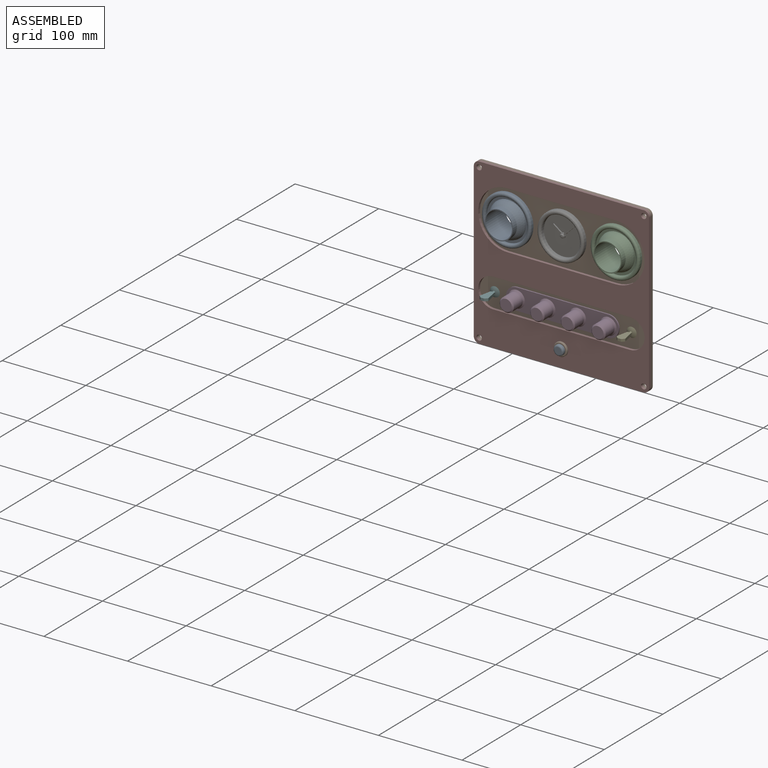
[diagram: assembled view]
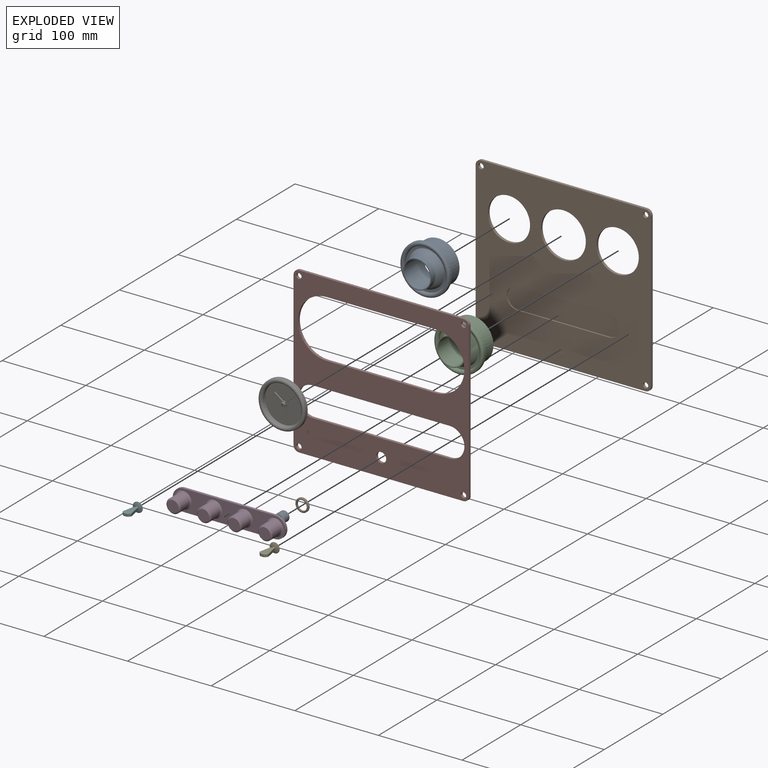
[diagram: exploded view]
GUIDED TOUR — MATED ASSEMBLY WITH SUBASSEMBLIES (Onshape document 7c3ce6815d3dd1184ce7540e, AutoMate assembly 7c3ce6815d3dd1184ce7540e_483a6e22841817b8dac2f705_e077e26f0af11b9b3541a5b8_default)

This assembly has 16 component occurrences arranged in 10 top-level units: 7 individual components plus 3 subassemblies (S0, S1, S2). The tour has two levels: first the top level, where each subassembly is treated as one rigid unit; then each subassembly is toured internally in its own section (nesting deeper than one subassembly level is flattened into its subassembly's section).

Components are labeled P0..P15 across the whole record; subassembly units are labeled S0..S2. A mate is a constraint between two units; its type names the relative motion it leaves free:
  BALL — leaves all rotation about the listed point free (a ball joint),
  FASTENED — locks the two components together rigidly (no relative motion).
Axis/direction vectors are unit vectors and 'through' points are millimeter coordinates, both in the assembly's world frame.

TOP-LEVEL MATES (between units; each subassembly's internal mates are listed in its own section)
  1. FASTENED "Fastened 1": P4 <-> P12, direction (0.000, 1.000, 0.000) through (-36.14, -2.82, -33.76) mm
  2. FASTENED "Fastened 6": S1 <-> P12, direction (0.000, 1.000, 0.000) through (28.86, -4.32, 49.34) mm
  3. FASTENED "Fastened 9": P10 <-> P12, direction (0.000, 1.000, 0.000) through (-134.57, -4.32, 97.52) mm
  4. FASTENED "Fastened 8": S2 <-> P12, direction (0.000, 1.000, 0.000) through (-36.14, -4.32, 49.34) mm
  5. FASTENED "Fastened 5": P8 <-> P12, direction (0.000, 1.000, 0.000) through (-117.94, -4.22, -33.76) mm
  6. FASTENED "Fastened 7": S0 <-> P12, direction (0.000, 1.000, 0.000) through (-101.14, -4.32, 49.34) mm
  7. FASTENED "Fastened 2": P1 <-> P10, direction (0.000, 1.000, 0.000) through (-36.14, -7.49, -72.26) mm
  8. FASTENED "Fastened 4": P7 <-> P12, direction (0.000, 1.000, 0.000) through (45.66, -4.22, -33.76) mm
  9. FASTENED "Fastened 3": P11 <-> P12, direction (0.000, 1.000, 0.000) through (-36.14, -4.22, -72.26) mm

TOP-LEVEL ASSEMBLY ORDER
  1. P12 — the base component [order heuristic]
  2. S0 — core [order heuristic]
  3. S1 — core [order heuristic]
  4. P10 [order verified]
  5. P4 [order verified]
  6. P1 [order verified]
  7. P11 [order verified]
  8. P8 [order verified]
  9. P7 [order verified]
  10. S2 [order verified]
Order-tag legend:
  [order verified] — this step's position reverses a verified removal order: the component was checked to insert without passing through the ones already placed.
  [order heuristic] — the first 3 components form the assembly's core: parts whose collision-free extraction could not be verified, listed in mate-graph order.

Of the 16 component occurrences, 15 carry the full construction recipe — the FeatureScript program that regenerates the part's solid from scratch; the rest are supplied as boundary geometry only. Each toured unit is shown spotlighted twice — assembled, then exploded with a leader line back to its socket (green = recipe-attached component, orange = geometry-only, blue = subassembly unit; the rest desaturated gray).
NOTE — document 2 of 2 of this assembly tour. The two overview renders and the header above are repeated from document 1; the component sections below continue where the previous document stopped.
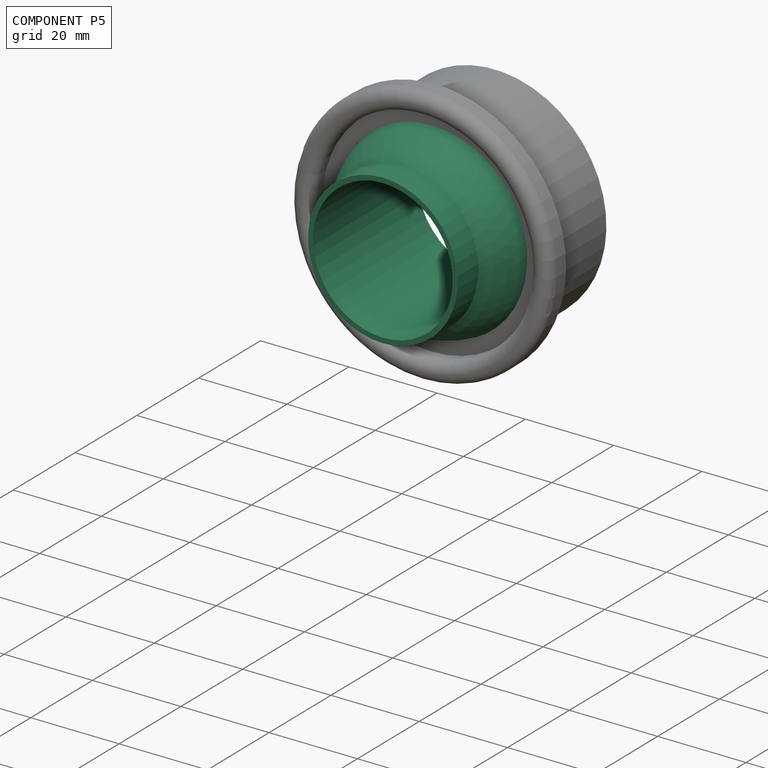
[diagram: component P5 — assembled]
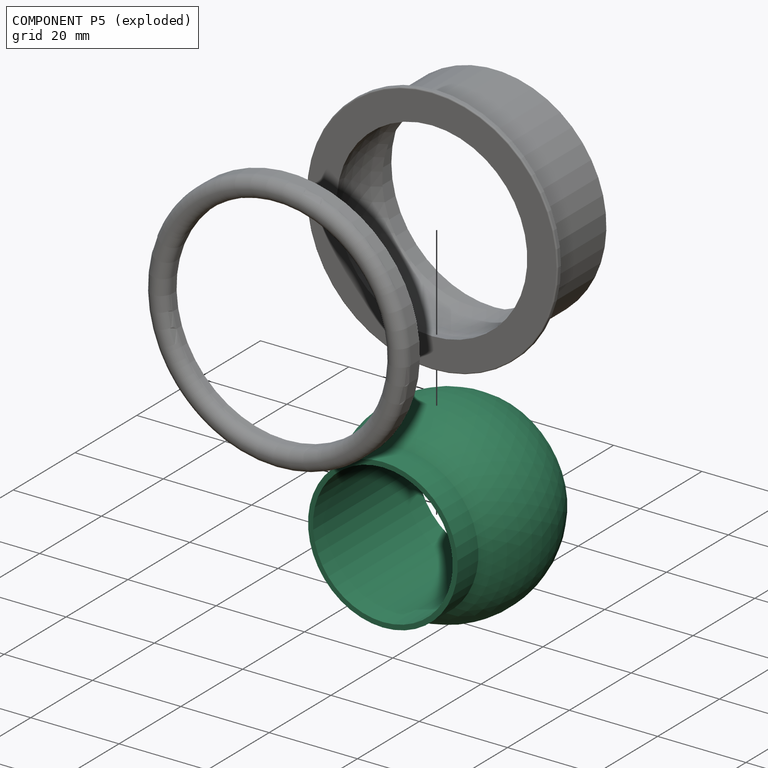
[diagram: component P5 — exploded]
COMPONENT P5 — recipe-attached (CADFS 00925167, mesh-verified: the recipe's output STEP matches this component's geometry to below the mesh-comparison resolution (tessellation chordal tolerance ~0.107 mm)).
Held by: BALL mate "Ball 1" to P0; BALL mate "Ball 1" to P0.
Construction recipe (FeatureScript — the CAD program that rebuilds this solid; sketch coordinates are in the units given by the * unit suffixes, e.g. mm):

FeatureScript 1540;
import(path : "onshape/std/geometry.fs", version : "1540.0");
import(path : "onshape/std/common.fs", version : "1540.0");
const mm = millimeter;
const VERTEX = EntityType.VERTEX;
const EDGE = EntityType.EDGE;
const FACE = EntityType.FACE;
const BODY = EntityType.BODY;
function v(x, y){return vector(x, y);}
function OD(order){return orderDisambiguation(order);}
function OSD(set){return originalSetDisambiguation(set);}
function TD(topology){return topologyDisambiguation(topology);}
function TDD(query){return trueDependencyDisambiguation(query);}
function sQuery(a, b, c) {return sketchEntityQuery(a, b, c);}

annotation { "Feature Type Name" : "Feature", "Feature Type Description" : "" }
export const myFeature = defineFeature(function(context is Context, id is Id, definition is map)
    precondition{}
    {
        {
            var Q0;
            Q0=qCreatedBy(makeId("Right.planeOp"),FACE);
            var sketch = newSketch(context, id + "F0", { "sketchPlane" : qUnion([Q0])});
            skLineSegment(sketch, "E0", {"start": v(-31.67, 0) * mm, "end": v(38.06, 0) * mm, "construction": true});
            skArc(sketch, "E1", {"start": v(22.18, 0) * mm, "mid": v(0, 22.18) * mm, "end": v(-22.18, 0) * mm});
            skLineSegment(sketch, "E2", {"start": v(-22.18, 0) * mm, "end": v(22.18, 0) * mm});
            skSolve(sketch);
        }
        {
            var Q0;
            Q0 = qSketchRegion(id + "F0", true);
            var Q1;
            Q1=sQuery(id+"F0.wireOp",EDGE,"E0");
            revolve(context, id + "F1", {"surfaceOperationType" : NewSurfaceOperationType.NEW, "entities" : qUnion([Q0]), "axis" : qUnion([Q1]), "revolveType" : RevolveType.FULL});
        }
        {
            var Q0;
            Q0=qCreatedBy(makeId("Front.planeOp"),FACE);
            var sketch = newSketch(context, id + "F2", { "sketchPlane" : qUnion([Q0])});
            skCircle(sketch, "E3", {"center": v(0, 0) * mm, "radius": 16.95 * mm});
            skSolve(sketch);
        }
        {
            var Q0;
            Q0 = qSketchRegion(id + "F2", true);
            extrude(context, id + "F3", {"entities" : qUnion([Q0]), "operationType" : NewBodyOperationType.ADD, "depth" : 21.02 * mm, "offsetDistance" : 25 * mm});
        }
        {
            var Q0;
            Q0=makeQuery(id+"F3.opExtrude","CAP_FACE",FACE,{"disambiguationData":[OSD([sQuery(id+"F2.wireOp",EDGE,"E3")])],"isStart":false});
            var sketch = newSketch(context, id + "F4", { "sketchPlane" : qUnion([Q0])});
            skCircle(sketch, "E4", {"center": v(0, 0) * mm, "radius": 15.83 * mm});
            skSolve(sketch);
        }
        {
            var Q0;
            Q0 = qSketchRegion(id + "F4", true);
            extrude(context, id + "F5", {"entities" : qUnion([Q0]), "operationType" : NewBodyOperationType.REMOVE, "oppositeDirection" : true, "depth" : 100 * mm, "offsetDistance" : 25 * mm, "symmetric" : true});
        }
        {
            var Q0;
            Q0=qCreatedBy(makeId("Right.planeOp"),FACE);
            var sketch = newSketch(context, id + "F6", { "sketchPlane" : qUnion([Q0])});
            skLineSegment(sketch, "E5.bottom", {"start": v(20, 30) * mm, "end": v(12.63, 30) * mm});
            skLineSegment(sketch, "E5.top", {"start": v(20, -30) * mm, "end": v(12.63, -30) * mm});
            skLineSegment(sketch, "E5.left", {"start": v(20, 30) * mm, "end": v(20, -30) * mm});
            skLineSegment(sketch, "E5.right", {"start": v(12.63, 30) * mm, "end": v(12.63, -30) * mm});
            skSolve(sketch);
        }
        {
            var Q0;
            Q0 = qSketchRegion(id + "F6", true);
            extrude(context, id + "F7", {"entities" : qUnion([Q0]), "operationType" : NewBodyOperationType.REMOVE, "oppositeDirection" : true, "depth" : 100 * mm, "offsetDistance" : 25 * mm, "symmetric" : true});
        }
    });
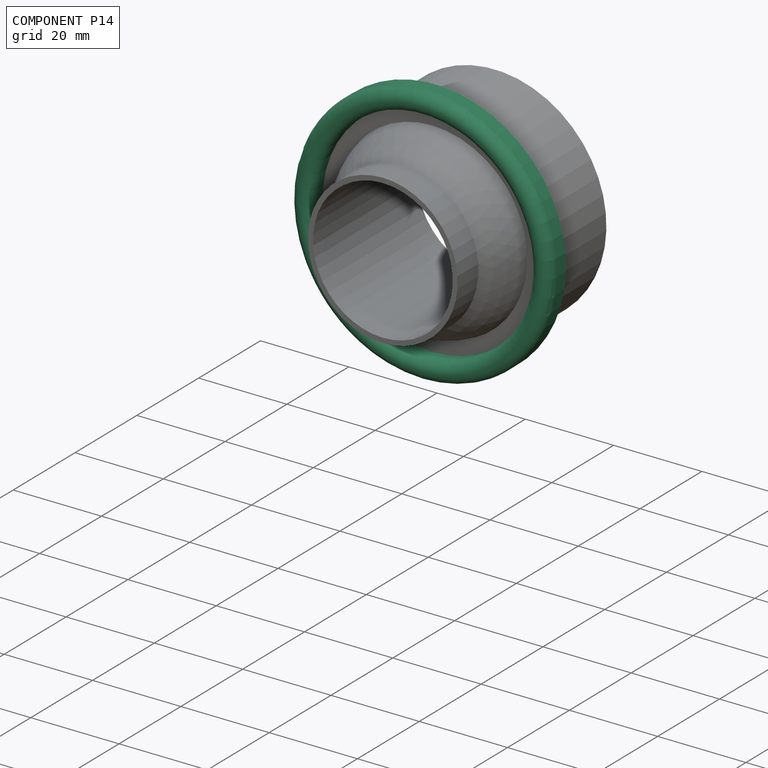
[diagram: component P14 — assembled]
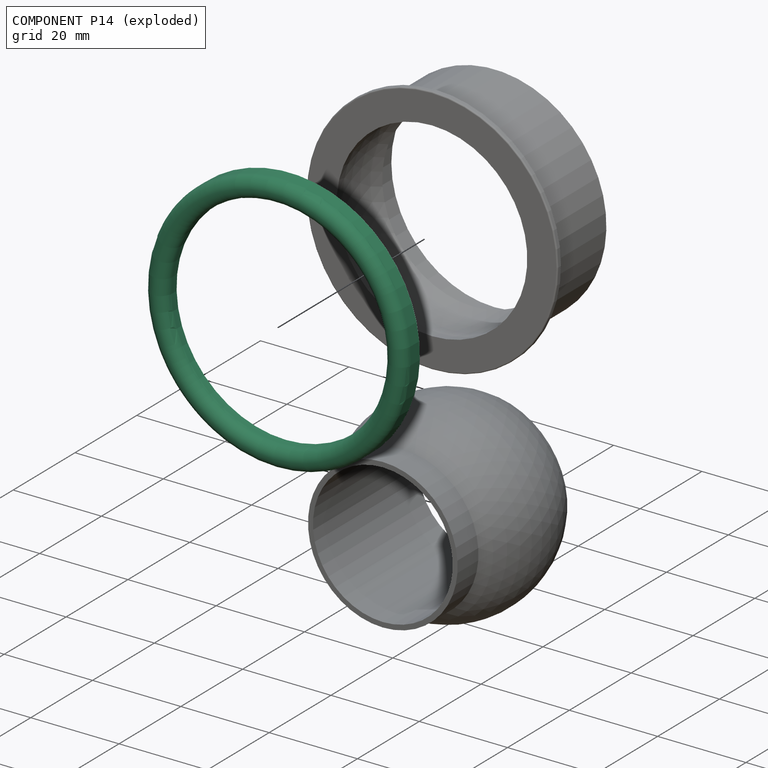
[diagram: component P14 — exploded]
COMPONENT P14 — recipe-attached (CADFS 00925166, mesh-verified: the recipe's output STEP matches this component's geometry to below the mesh-comparison resolution (tessellation chordal tolerance ~0.125 mm)).
Held by: FASTENED mate "Fastened 1" to P0; FASTENED mate "Fastened 1" to P0.
Construction recipe (FeatureScript — the CAD program that rebuilds this solid; sketch coordinates are in the units given by the * unit suffixes, e.g. mm):

FeatureScript 1540;
import(path : "onshape/std/geometry.fs", version : "1540.0");
import(path : "onshape/std/common.fs", version : "1540.0");
const mm = millimeter;
const VERTEX = EntityType.VERTEX;
const EDGE = EntityType.EDGE;
const FACE = EntityType.FACE;
const BODY = EntityType.BODY;
function v(x, y){return vector(x, y);}
function OD(order){return orderDisambiguation(order);}
function OSD(set){return originalSetDisambiguation(set);}
function TD(topology){return topologyDisambiguation(topology);}
function TDD(query){return trueDependencyDisambiguation(query);}
function sQuery(a, b, c) {return sketchEntityQuery(a, b, c);}

annotation { "Feature Type Name" : "Feature", "Feature Type Description" : "" }
export const myFeature = defineFeature(function(context is Context, id is Id, definition is map)
    precondition{}
    {
        {
            var Q0;
            Q0=qCreatedBy(makeId("Right.planeOp"),FACE);
            var sketch = newSketch(context, id + "F0", { "sketchPlane" : qUnion([Q0])});
            skLineSegment(sketch, "E0", {"start": v(-23.85, 0) * mm, "end": v(29.78, 0) * mm, "construction": true});
            skLineSegment(sketch, "E1", {"start": v(0, 29.5) * mm, "end": v(-2.92, 29.5) * mm});
            skLineSegment(sketch, "E2", {"start": v(-5.3, 27.13) * mm, "end": v(-5.3, 27.12) * mm});
            skLineSegment(sketch, "E3", {"start": v(-2.92, 24.75) * mm, "end": v(-1.25, 24.75) * mm});
            skLineSegment(sketch, "E4", {"start": v(-1.25, 24.75) * mm, "end": v(-1.25, 28.5) * mm});
            skLineSegment(sketch, "E5", {"start": v(-1.25, 28.5) * mm, "end": v(0, 28.5) * mm});
            skLineSegment(sketch, "E6", {"start": v(0, 28.5) * mm, "end": v(0, 29.5) * mm});
            skPoint(sketch, "E7.visualSharp", {"position": v(-5.3, 29.5) * mm});
            skArc(sketch, "E7.filletArc", {"start": v(-2.93, 29.5) * mm, "mid": v(-4.6, 28.8) * mm, "end": v(-5.3, 27.13) * mm});
            skPoint(sketch, "E8.visualSharp", {"position": v(-5.3, 24.75) * mm});
            skArc(sketch, "E8.filletArc", {"start": v(-5.3, 27.12) * mm, "mid": v(-4.6, 25.45) * mm, "end": v(-2.92, 24.75) * mm});
            skSolve(sketch);
        }
        {
            var Q0;
            Q0 = qSketchRegion(id + "F0", true);
            var Q1;
            Q1=sQuery(id+"F0.wireOp",EDGE,"E0");
            revolve(context, id + "F1", {"surfaceOperationType" : NewSurfaceOperationType.NEW, "entities" : qUnion([Q0]), "axis" : qUnion([Q1]), "revolveType" : RevolveType.FULL});
        }
    });
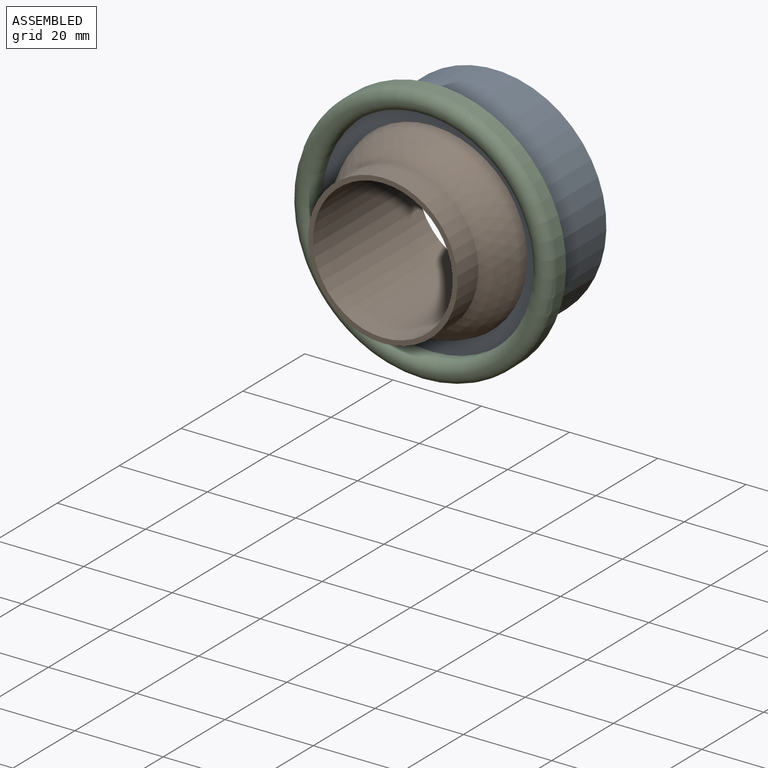
[diagram: subassembly S1 — assembled view]
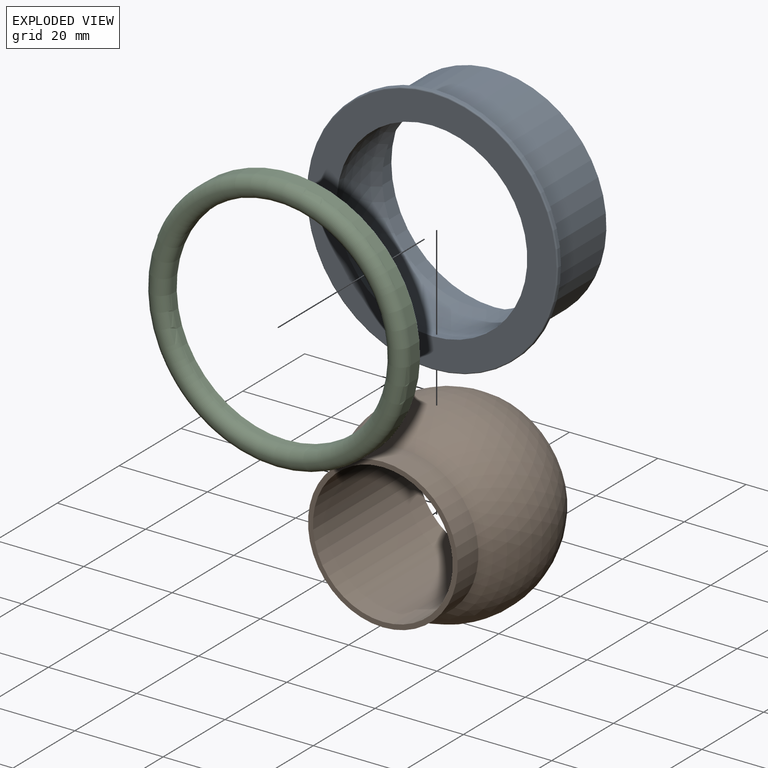
[diagram: subassembly S1 — exploded view]
SUBASSEMBLY S1 TOUR — 3 components, shown here in isolation at its own camera.

INTERNAL MATES
  1. BALL "Ball 1": P2 <-> P3, direction (0.000, 0.000, 1.000) through (28.86, -0.56, 49.34) mm
  2. FASTENED "Fastened 1": P6 <-> P2, direction (0.000, 1.000, 0.000) through (28.86, -5.67, 49.34) mm
  3. BALL "Ball 1": P2 <-> P3, direction (0.000, 0.000, 1.000) through (28.86, -0.56, 49.34) mm
  4. FASTENED "Fastened 1": P6 <-> P2, direction (0.000, 1.000, 0.000) through (28.86, -5.67, 49.34) mm

ASSEMBLY ORDER (within the subassembly)
  1. P2 — the base component [order heuristic]
  2. P3 — core [order heuristic]
  3. P6 [order verified]
(P6 verified with a relaxed clearance tolerance: the source model stores slight part interference there.)
Order-tag legend:
  [order verified] — this step's position reverses a verified removal order: the component was checked to insert without passing through the ones already placed.
  [order heuristic] — the first 2 components form the assembly's core: parts whose collision-free extraction could not be verified, listed in mate-graph order.
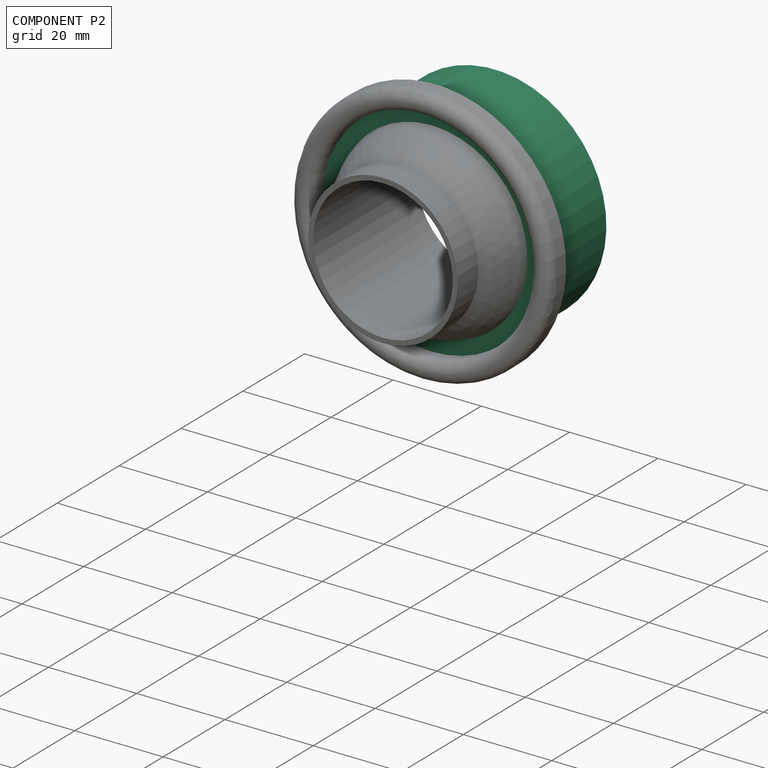
[diagram: component P2 — assembled]
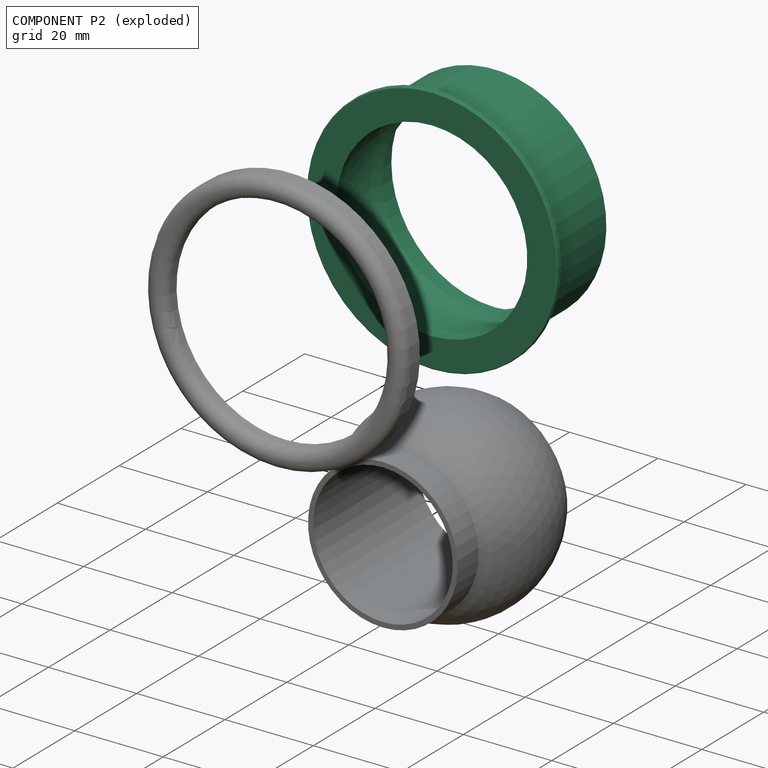
[diagram: component P2 — exploded]
COMPONENT P2 — recipe-attached (CADFS 00925168, mesh-verified: the recipe's output STEP matches this component's geometry to below the mesh-comparison resolution (tessellation chordal tolerance ~0.124 mm)).
Held by: BALL mate "Ball 1" to P3; FASTENED mate "Fastened 1" to P6; BALL mate "Ball 1" to P3; FASTENED mate "Fastened 1" to P6.
Construction recipe (FeatureScript — the CAD program that rebuilds this solid; sketch coordinates are in the units given by the * unit suffixes, e.g. mm):

FeatureScript 1540;
import(path : "onshape/std/geometry.fs", version : "1540.0");
import(path : "onshape/std/common.fs", version : "1540.0");
const mm = millimeter;
const VERTEX = EntityType.VERTEX;
const EDGE = EntityType.EDGE;
const FACE = EntityType.FACE;
const BODY = EntityType.BODY;
function v(x, y){return vector(x, y);}
function OD(order){return orderDisambiguation(order);}
function OSD(set){return originalSetDisambiguation(set);}
function TD(topology){return topologyDisambiguation(topology);}
function TDD(query){return trueDependencyDisambiguation(query);}
function sQuery(a, b, c) {return sketchEntityQuery(a, b, c);}

annotation { "Feature Type Name" : "Feature", "Feature Type Description" : "" }
export const myFeature = defineFeature(function(context is Context, id is Id, definition is map)
    precondition{}
    {
        {
            var Q0;
            Q0=qCreatedBy(makeId("Right.planeOp"),FACE);
            var sketch = newSketch(context, id + "F0", { "sketchPlane" : qUnion([Q0])});
            skArc(sketch, "E0", {"start": v(-5.1, 21.58) * mm, "mid": v(1.62, 22.12) * mm, "end": v(8.2, 20.61) * mm});
            skLineSegment(sketch, "E1", {"start": v(-5.11, 21.58) * mm, "end": v(-5.11, 28.15) * mm});
            skLineSegment(sketch, "E2", {"start": v(-4.81, 28.45) * mm, "end": v(-4.06, 28.45) * mm});
            skLineSegment(sketch, "E3", {"start": v(-3.76, 28.15) * mm, "end": v(-3.76, 25.63) * mm});
            skLineSegment(sketch, "E4", {"start": v(-3.46, 25.33) * mm, "end": v(15.13, 25.33) * mm});
            skLineSegment(sketch, "E5", {"start": v(15.13, 25.33) * mm, "end": v(15.13, 23.4) * mm});
            skLineSegment(sketch, "E6", {"start": v(15.13, 23.4) * mm, "end": v(8.5, 23.4) * mm});
            skLineSegment(sketch, "E7", {"start": v(8.2, 23.09) * mm, "end": v(8.2, 20.61) * mm});
            skPoint(sketch, "E8.visualSharp", {"position": v(-5.11, 28.45) * mm});
            skArc(sketch, "E8.filletArc", {"start": v(-4.81, 28.45) * mm, "mid": v(-5.02, 28.36) * mm, "end": v(-5.11, 28.15) * mm});
            skPoint(sketch, "E9.visualSharp", {"position": v(-3.76, 28.45) * mm});
            skArc(sketch, "E9.filletArc", {"start": v(-3.76, 28.15) * mm, "mid": v(-3.85, 28.36) * mm, "end": v(-4.06, 28.45) * mm});
            skPoint(sketch, "E10.visualSharp", {"position": v(-3.76, 25.33) * mm});
            skArc(sketch, "E10.filletArc", {"start": v(-3.76, 25.63) * mm, "mid": v(-3.67, 25.42) * mm, "end": v(-3.46, 25.33) * mm});
            skPoint(sketch, "E11.visualSharp", {"position": v(8.2, 23.4) * mm});
            skArc(sketch, "E11.filletArc", {"start": v(8.5, 23.4) * mm, "mid": v(8.28, 23.3) * mm, "end": v(8.2, 23.09) * mm});
            skPoint(sketch, "E12.orphan", {"position": v(-22.18, 0) * mm});
            skPoint(sketch, "E13.orphan", {"position": v(22.18, 0) * mm});
            skLineSegment(sketch, "E14", {"start": v(-51.15, 0) * mm, "end": v(58.37, 0) * mm, "construction": true});
            skSolve(sketch);
        }
        {
            var Q0;
            Q0 = qSketchRegion(id + "F0", true);
            var Q1;
            Q1=sQuery(id+"F0.wireOp",EDGE,"E14");
            revolve(context, id + "F1", {"surfaceOperationType" : NewSurfaceOperationType.NEW, "entities" : qUnion([Q0]), "axis" : qUnion([Q1]), "revolveType" : RevolveType.FULL});
        }
    });
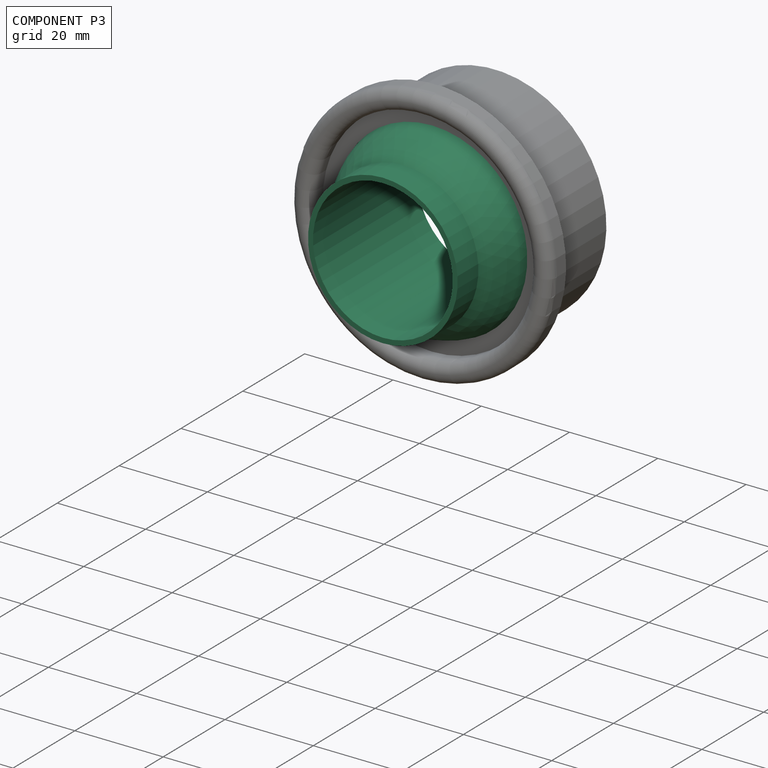
[diagram: component P3 — assembled]
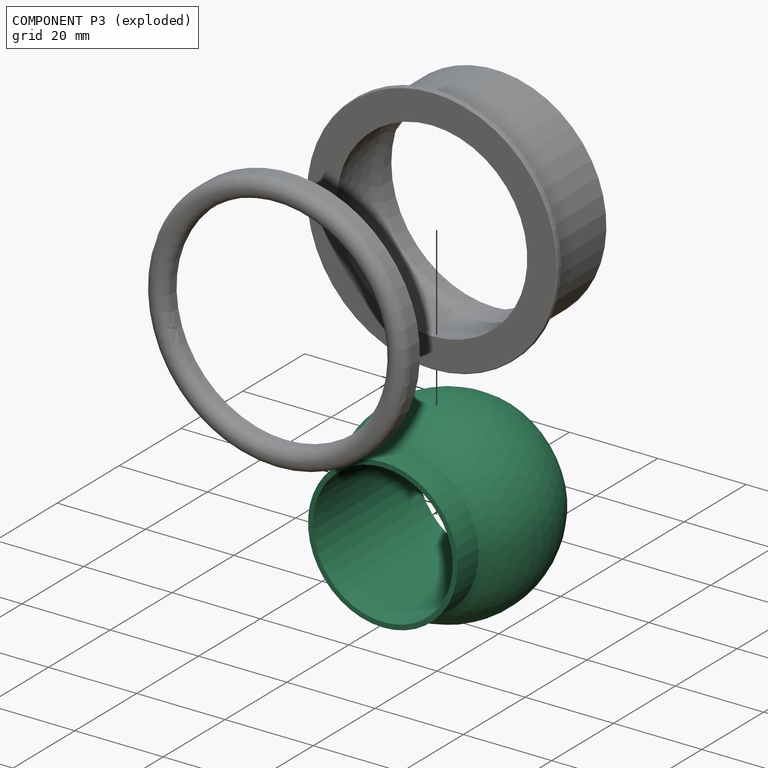
[diagram: component P3 — exploded]
COMPONENT P3 — recipe-attached (CADFS 00925167, mesh-verified: the recipe's output STEP matches this component's geometry to below the mesh-comparison resolution (tessellation chordal tolerance ~0.107 mm)).
Held by: BALL mate "Ball 1" to P2; BALL mate "Ball 1" to P2.
Construction recipe (FeatureScript — the CAD program that rebuilds this solid; sketch coordinates are in the units given by the * unit suffixes, e.g. mm):

FeatureScript 1540;
import(path : "onshape/std/geometry.fs", version : "1540.0");
import(path : "onshape/std/common.fs", version : "1540.0");
const mm = millimeter;
const VERTEX = EntityType.VERTEX;
const EDGE = EntityType.EDGE;
const FACE = EntityType.FACE;
const BODY = EntityType.BODY;
function v(x, y){return vector(x, y);}
function OD(order){return orderDisambiguation(order);}
function OSD(set){return originalSetDisambiguation(set);}
function TD(topology){return topologyDisambiguation(topology);}
function TDD(query){return trueDependencyDisambiguation(query);}
function sQuery(a, b, c) {return sketchEntityQuery(a, b, c);}

annotation { "Feature Type Name" : "Feature", "Feature Type Description" : "" }
export const myFeature = defineFeature(function(context is Context, id is Id, definition is map)
    precondition{}
    {
        {
            var Q0;
            Q0=qCreatedBy(makeId("Right.planeOp"),FACE);
            var sketch = newSketch(context, id + "F0", { "sketchPlane" : qUnion([Q0])});
            skLineSegment(sketch, "E0", {"start": v(-31.67, 0) * mm, "end": v(38.06, 0) * mm, "construction": true});
            skArc(sketch, "E1", {"start": v(22.18, 0) * mm, "mid": v(0, 22.18) * mm, "end": v(-22.18, 0) * mm});
            skLineSegment(sketch, "E2", {"start": v(-22.18, 0) * mm, "end": v(22.18, 0) * mm});
            skSolve(sketch);
        }
        {
            var Q0;
            Q0 = qSketchRegion(id + "F0", true);
            var Q1;
            Q1=sQuery(id+"F0.wireOp",EDGE,"E0");
            revolve(context, id + "F1", {"surfaceOperationType" : NewSurfaceOperationType.NEW, "entities" : qUnion([Q0]), "axis" : qUnion([Q1]), "revolveType" : RevolveType.FULL});
        }
        {
            var Q0;
            Q0=qCreatedBy(makeId("Front.planeOp"),FACE);
            var sketch = newSketch(context, id + "F2", { "sketchPlane" : qUnion([Q0])});
            skCircle(sketch, "E3", {"center": v(0, 0) * mm, "radius": 16.95 * mm});
            skSolve(sketch);
        }
        {
            var Q0;
            Q0 = qSketchRegion(id + "F2", true);
            extrude(context, id + "F3", {"entities" : qUnion([Q0]), "operationType" : NewBodyOperationType.ADD, "depth" : 21.02 * mm, "offsetDistance" : 25 * mm});
        }
        {
            var Q0;
            Q0=makeQuery(id+"F3.opExtrude","CAP_FACE",FACE,{"disambiguationData":[OSD([sQuery(id+"F2.wireOp",EDGE,"E3")])],"isStart":false});
            var sketch = newSketch(context, id + "F4", { "sketchPlane" : qUnion([Q0])});
            skCircle(sketch, "E4", {"center": v(0, 0) * mm, "radius": 15.83 * mm});
            skSolve(sketch);
        }
        {
            var Q0;
            Q0 = qSketchRegion(id + "F4", true);
            extrude(context, id + "F5", {"entities" : qUnion([Q0]), "operationType" : NewBodyOperationType.REMOVE, "oppositeDirection" : true, "depth" : 100 * mm, "offsetDistance" : 25 * mm, "symmetric" : true});
        }
        {
            var Q0;
            Q0=qCreatedBy(makeId("Right.planeOp"),FACE);
            var sketch = newSketch(context, id + "F6", { "sketchPlane" : qUnion([Q0])});
            skLineSegment(sketch, "E5.bottom", {"start": v(20, 30) * mm, "end": v(12.63, 30) * mm});
            skLineSegment(sketch, "E5.top", {"start": v(20, -30) * mm, "end": v(12.63, -30) * mm});
            skLineSegment(sketch, "E5.left", {"start": v(20, 30) * mm, "end": v(20, -30) * mm});
            skLineSegment(sketch, "E5.right", {"start": v(12.63, 30) * mm, "end": v(12.63, -30) * mm});
            skSolve(sketch);
        }
        {
            var Q0;
            Q0 = qSketchRegion(id + "F6", true);
            extrude(context, id + "F7", {"entities" : qUnion([Q0]), "operationType" : NewBodyOperationType.REMOVE, "oppositeDirection" : true, "depth" : 100 * mm, "offsetDistance" : 25 * mm, "symmetric" : true});
        }
    });
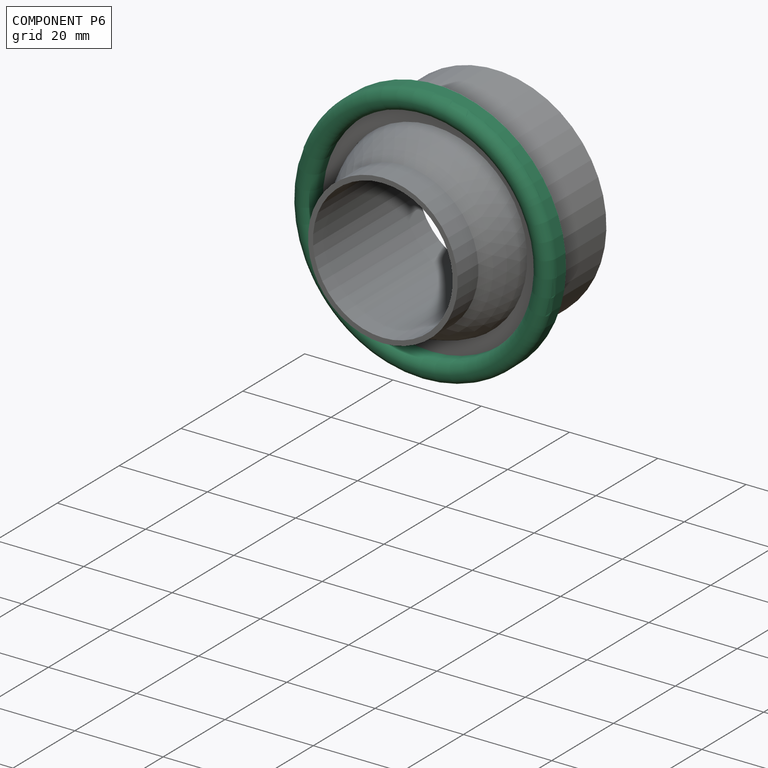
[diagram: component P6 — assembled]
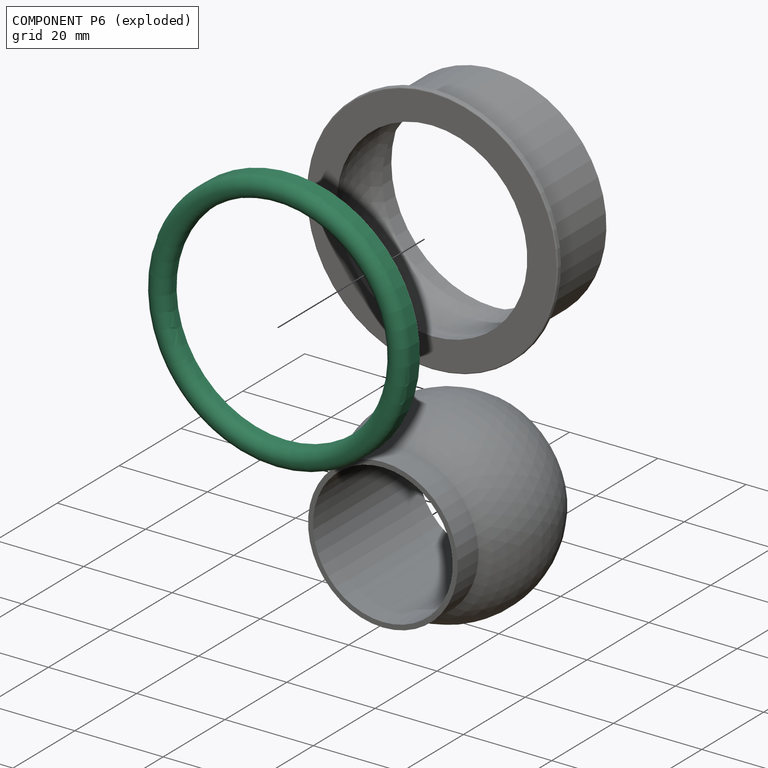
[diagram: component P6 — exploded]
COMPONENT P6 — recipe-attached (CADFS 00925166, mesh-verified: the recipe's output STEP matches this component's geometry to below the mesh-comparison resolution (tessellation chordal tolerance ~0.125 mm)).
Held by: FASTENED mate "Fastened 1" to P2; FASTENED mate "Fastened 1" to P2.
Construction recipe (FeatureScript — the CAD program that rebuilds this solid; sketch coordinates are in the units given by the * unit suffixes, e.g. mm):

FeatureScript 1540;
import(path : "onshape/std/geometry.fs", version : "1540.0");
import(path : "onshape/std/common.fs", version : "1540.0");
const mm = millimeter;
const VERTEX = EntityType.VERTEX;
const EDGE = EntityType.EDGE;
const FACE = EntityType.FACE;
const BODY = EntityType.BODY;
function v(x, y){return vector(x, y);}
function OD(order){return orderDisambiguation(order);}
function OSD(set){return originalSetDisambiguation(set);}
function TD(topology){return topologyDisambiguation(topology);}
function TDD(query){return trueDependencyDisambiguation(query);}
function sQuery(a, b, c) {return sketchEntityQuery(a, b, c);}

annotation { "Feature Type Name" : "Feature", "Feature Type Description" : "" }
export const myFeature = defineFeature(function(context is Context, id is Id, definition is map)
    precondition{}
    {
        {
            var Q0;
            Q0=qCreatedBy(makeId("Right.planeOp"),FACE);
            var sketch = newSketch(context, id + "F0", { "sketchPlane" : qUnion([Q0])});
            skLineSegment(sketch, "E0", {"start": v(-23.85, 0) * mm, "end": v(29.78, 0) * mm, "construction": true});
            skLineSegment(sketch, "E1", {"start": v(0, 29.5) * mm, "end": v(-2.92, 29.5) * mm});
            skLineSegment(sketch, "E2", {"start": v(-5.3, 27.13) * mm, "end": v(-5.3, 27.12) * mm});
            skLineSegment(sketch, "E3", {"start": v(-2.92, 24.75) * mm, "end": v(-1.25, 24.75) * mm});
            skLineSegment(sketch, "E4", {"start": v(-1.25, 24.75) * mm, "end": v(-1.25, 28.5) * mm});
            skLineSegment(sketch, "E5", {"start": v(-1.25, 28.5) * mm, "end": v(0, 28.5) * mm});
            skLineSegment(sketch, "E6", {"start": v(0, 28.5) * mm, "end": v(0, 29.5) * mm});
            skPoint(sketch, "E7.visualSharp", {"position": v(-5.3, 29.5) * mm});
            skArc(sketch, "E7.filletArc", {"start": v(-2.93, 29.5) * mm, "mid": v(-4.6, 28.8) * mm, "end": v(-5.3, 27.13) * mm});
            skPoint(sketch, "E8.visualSharp", {"position": v(-5.3, 24.75) * mm});
            skArc(sketch, "E8.filletArc", {"start": v(-5.3, 27.12) * mm, "mid": v(-4.6, 25.45) * mm, "end": v(-2.92, 24.75) * mm});
            skSolve(sketch);
        }
        {
            var Q0;
            Q0 = qSketchRegion(id + "F0", true);
            var Q1;
            Q1=sQuery(id+"F0.wireOp",EDGE,"E0");
            revolve(context, id + "F1", {"surfaceOperationType" : NewSurfaceOperationType.NEW, "entities" : qUnion([Q0]), "axis" : qUnion([Q1]), "revolveType" : RevolveType.FULL});
        }
    });
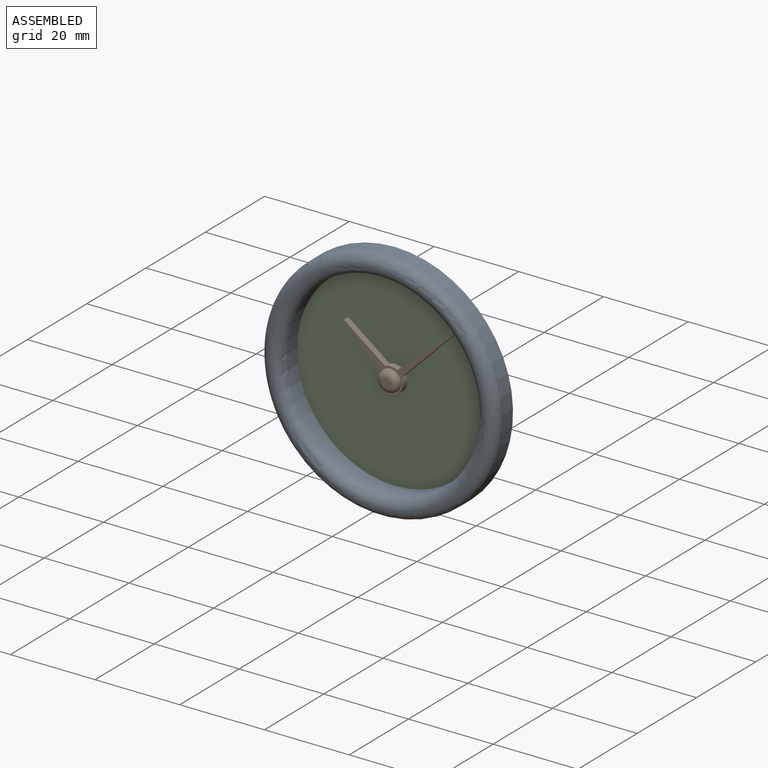
[diagram: subassembly S2 — assembled view]
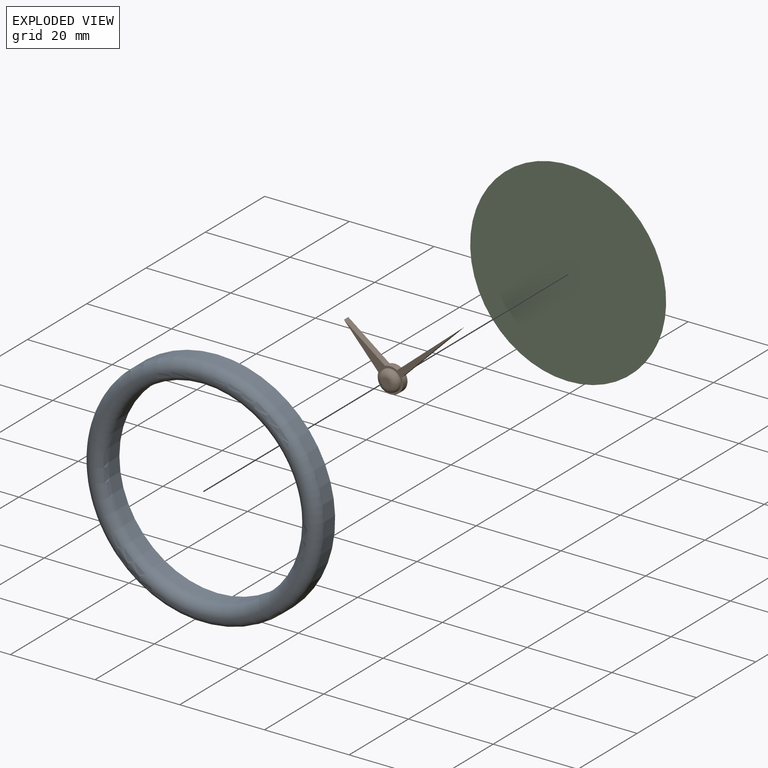
[diagram: subassembly S2 — exploded view]
SUBASSEMBLY S2 TOUR — 3 components, shown here in isolation at its own camera.

INTERNAL MATES
  1. FASTENED "Fastened 1": P13 <-> P15, direction (0.000, 1.000, 0.000) through (-36.14, -4.42, 49.34) mm
  2. FASTENED "Fastened 2": P15 <-> P9, direction (0.000, 1.000, 0.000) through (-36.14, -4.32, 49.34) mm
  3. FASTENED "Fastened 1": P13 <-> P15, direction (0.000, 1.000, 0.000) through (-36.14, -4.42, 49.34) mm
  4. FASTENED "Fastened 2": P15 <-> P9, direction (0.000, 1.000, 0.000) through (-36.14, -4.32, 49.34) mm

ASSEMBLY ORDER (within the subassembly)
  1. P13 — the base component [order verified]
  2. P15 [order verified]
  3. P9 [order verified]
Order-tag legend:
  [order verified] — this step's position reverses a verified removal order: the component was checked to insert without passing through the ones already placed.
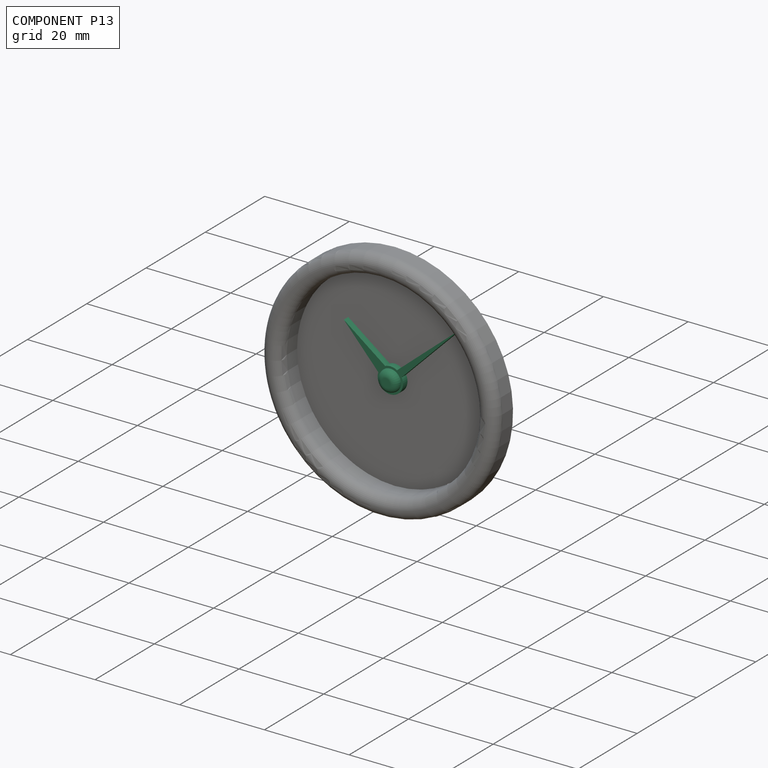
[diagram: component P13 — assembled]
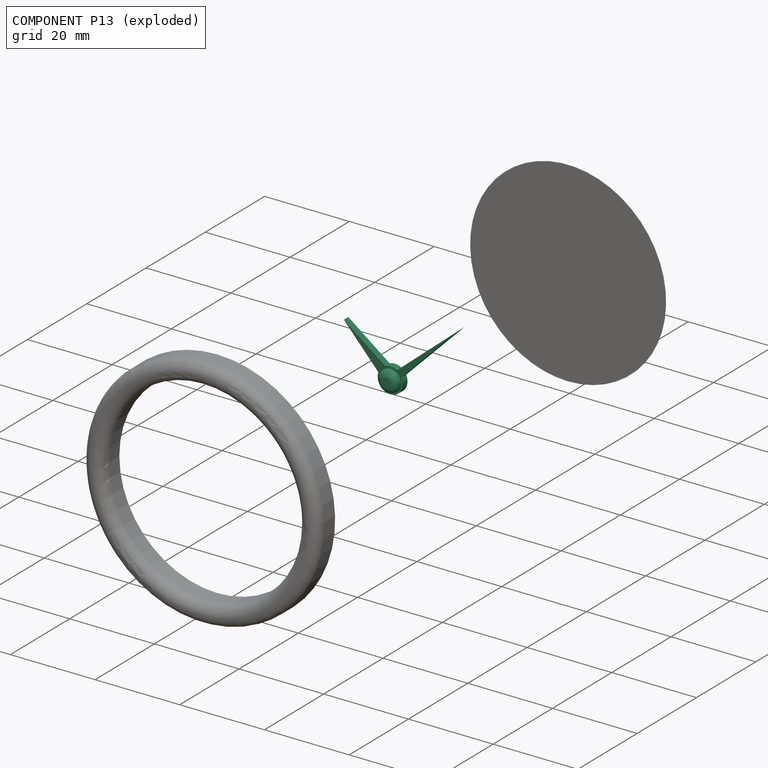
[diagram: component P13 — exploded]
COMPONENT P13 — recipe-attached (CADFS 00925165, mesh-verified: the recipe's output STEP matches this component's geometry to below the mesh-comparison resolution (tessellation chordal tolerance ~0.0495 mm)).
Held by: FASTENED mate "Fastened 1" to P15; FASTENED mate "Fastened 1" to P15.
Construction recipe (FeatureScript — the CAD program that rebuilds this solid; sketch coordinates are in the units given by the * unit suffixes, e.g. mm):

FeatureScript 1540;
import(path : "onshape/std/geometry.fs", version : "1540.0");
import(path : "onshape/std/common.fs", version : "1540.0");
const mm = millimeter;
const VERTEX = EntityType.VERTEX;
const EDGE = EntityType.EDGE;
const FACE = EntityType.FACE;
const BODY = EntityType.BODY;
function v(x, y){return vector(x, y);}
function OD(order){return orderDisambiguation(order);}
function OSD(set){return originalSetDisambiguation(set);}
function TD(topology){return topologyDisambiguation(topology);}
function TDD(query){return trueDependencyDisambiguation(query);}
function sQuery(a, b, c) {return sketchEntityQuery(a, b, c);}

annotation { "Feature Type Name" : "Feature", "Feature Type Description" : "" }
export const myFeature = defineFeature(function(context is Context, id is Id, definition is map)
    precondition{}
    {
        {
            var Q0;
            Q0=qCreatedBy(makeId("Front.planeOp"),FACE);
            var sketch = newSketch(context, id + "F0", { "sketchPlane" : qUnion([Q0])});
            skCircle(sketch, "E0", {"center": v(0, 0) * mm, "radius": 2.5 * mm});
            skSolve(sketch);
        }
        {
            var Q0;
            Q0 = qSketchRegion(id + "F0", true);
            extrude(context, id + "F1", {"entities" : qUnion([Q0]), "depth" : 3 * mm, "offsetDistance" : 25 * mm});
        }
        {
            var Q0;
            Q0=makeQuery(id+"F1.opExtrude","CAP_EDGE",EDGE,{"disambiguationData":[OSD([sQuery(id+"F0.wireOp",EDGE,"E0")])],"isStart":false});
            fillet(context, id + "F2", {"entities" : qUnion([Q0]), "radius" : 1.5 * mm, "tangentPropagation" : true, "allowEdgeOverflow" : false});
        }
        {
            var Q0;
            Q0=qCreatedBy(makeId("Front.planeOp"),FACE);
            var sketch = newSketch(context, id + "F3", { "sketchPlane" : qUnion([Q0])});
            skArc(sketch, "E1", {"start": v(-2.84, 0.97) * mm, "mid": v(0.2, -3) * mm, "end": v(2.68, 1.36) * mm});
            skLineSegment(sketch, "E2", {"start": v(0, 0) * mm, "end": v(22.1, 20.4) * mm, "construction": true});
            skLineSegment(sketch, "E3", {"start": v(0, 0) * mm, "end": v(-13.96, 12.72) * mm, "construction": true});
            skLineSegment(sketch, "E4", {"start": v(-10.97, 10) * mm, "end": v(-2.84, 0.97) * mm});
            skLineSegment(sketch, "E5.MirrorCS", {"start": v(-10.97, 10) * mm, "end": v(-1.23, 2.74) * mm});
            skLineSegment(sketch, "E6", {"start": v(1.57, 2.56) * mm, "end": v(16.42, 15.16) * mm});
            skLineSegment(sketch, "E7.MirrorCS", {"start": v(2.68, 1.36) * mm, "end": v(16.42, 15.16) * mm});
            skArc(sketch, "E8.trimOffspring", {"start": v(1.57, 2.56) * mm, "mid": v(0.19, 3) * mm, "end": v(-1.23, 2.74) * mm});
            skSolve(sketch);
        }
        {
            var Q0;
            Q0 = qSketchRegion(id + "F3", true);
            extrude(context, id + "F4", {"entities" : qUnion([Q0]), "operationType" : NewBodyOperationType.ADD, "depth" : 1.5 * mm, "offsetDistance" : 25 * mm});
        }
    });
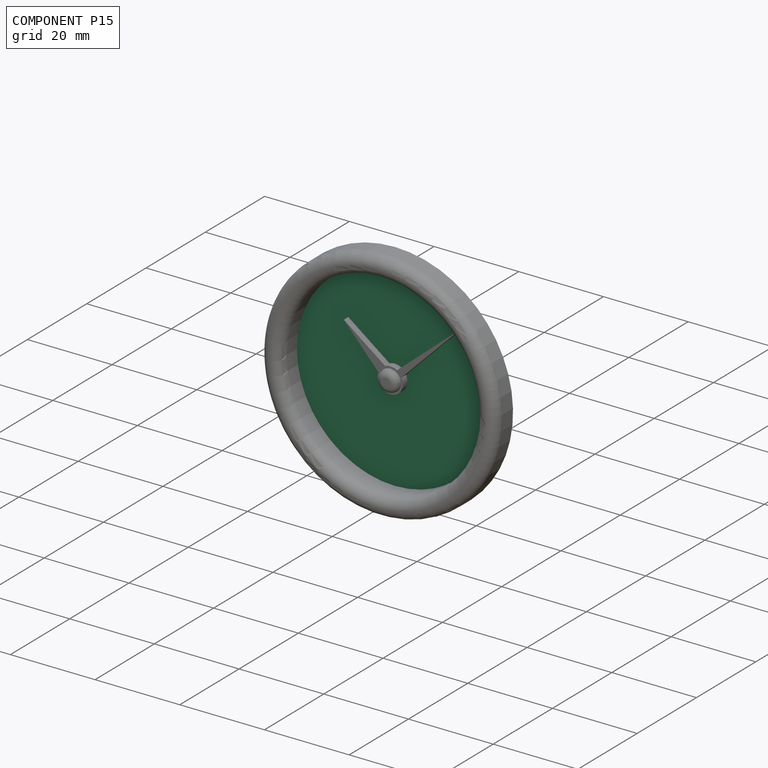
[diagram: component P15 — assembled]
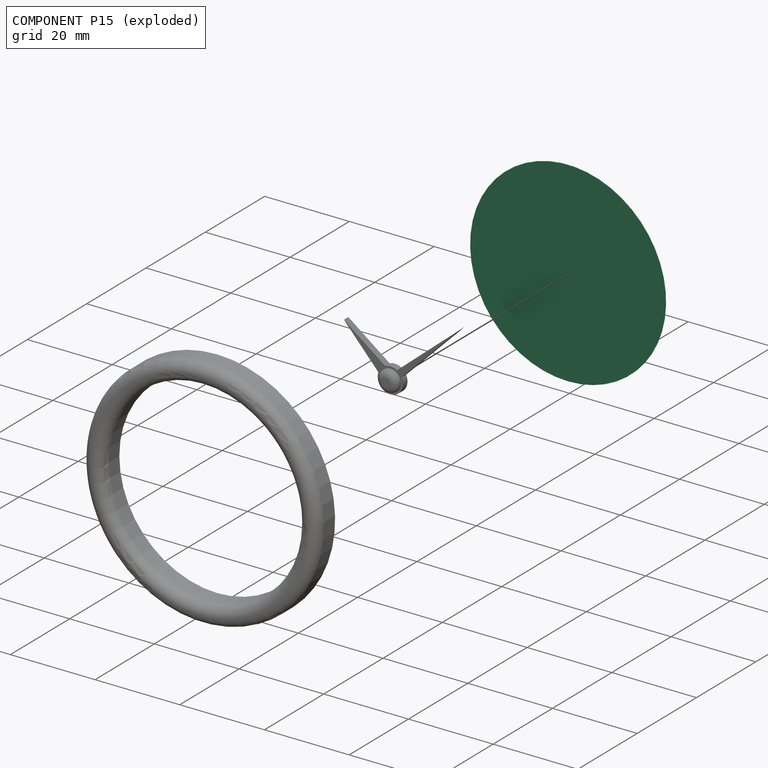
[diagram: component P15 — exploded]
COMPONENT P15 — recipe-attached (CADFS 00925163, mesh-verified: the recipe's output STEP matches this component's geometry to below the mesh-comparison resolution (tessellation chordal tolerance ~0.0979 mm)).
Held by: FASTENED mate "Fastened 1" to P13; FASTENED mate "Fastened 2" to P9; FASTENED mate "Fastened 1" to P13; FASTENED mate "Fastened 2" to P9.
Construction recipe (FeatureScript — the CAD program that rebuilds this solid; sketch coordinates are in the units given by the * unit suffixes, e.g. mm):

FeatureScript 1540;
import(path : "onshape/std/geometry.fs", version : "1540.0");
import(path : "onshape/std/common.fs", version : "1540.0");
const mm = millimeter;
const VERTEX = EntityType.VERTEX;
const EDGE = EntityType.EDGE;
const FACE = EntityType.FACE;
const BODY = EntityType.BODY;
function v(x, y){return vector(x, y);}
function OD(order){return orderDisambiguation(order);}
function OSD(set){return originalSetDisambiguation(set);}
function TD(topology){return topologyDisambiguation(topology);}
function TDD(query){return trueDependencyDisambiguation(query);}
function sQuery(a, b, c) {return sketchEntityQuery(a, b, c);}

annotation { "Feature Type Name" : "Feature", "Feature Type Description" : "" }
export const myFeature = defineFeature(function(context is Context, id is Id, definition is map)
    precondition{}
    {
        {
            var Q0;
            Q0=qCreatedBy(makeId("Front.planeOp"),FACE);
            var sketch = newSketch(context, id + "F0", { "sketchPlane" : qUnion([Q0])});
            skCircle(sketch, "E0", {"center": v(0, 0) * mm, "radius": 23.1 * mm});
            skSolve(sketch);
        }
        {
            var Q0;
            Q0 = qSketchRegion(id + "F0", true);
            extrude(context, id + "F1", {"entities" : qUnion([Q0]), "depth" : 0.1 * mm, "offsetDistance" : 25 * mm});
        }
    });
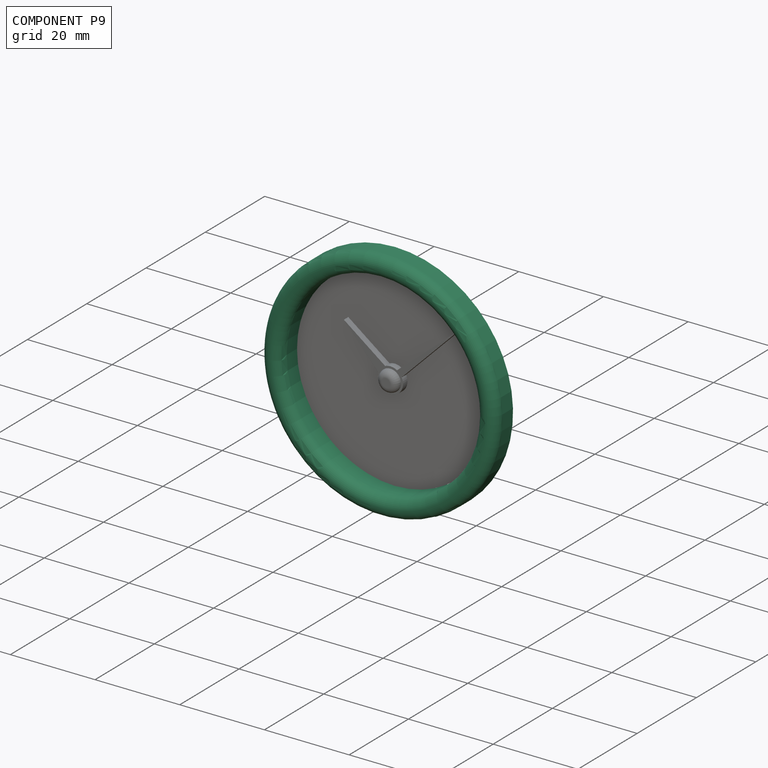
[diagram: component P9 — assembled]
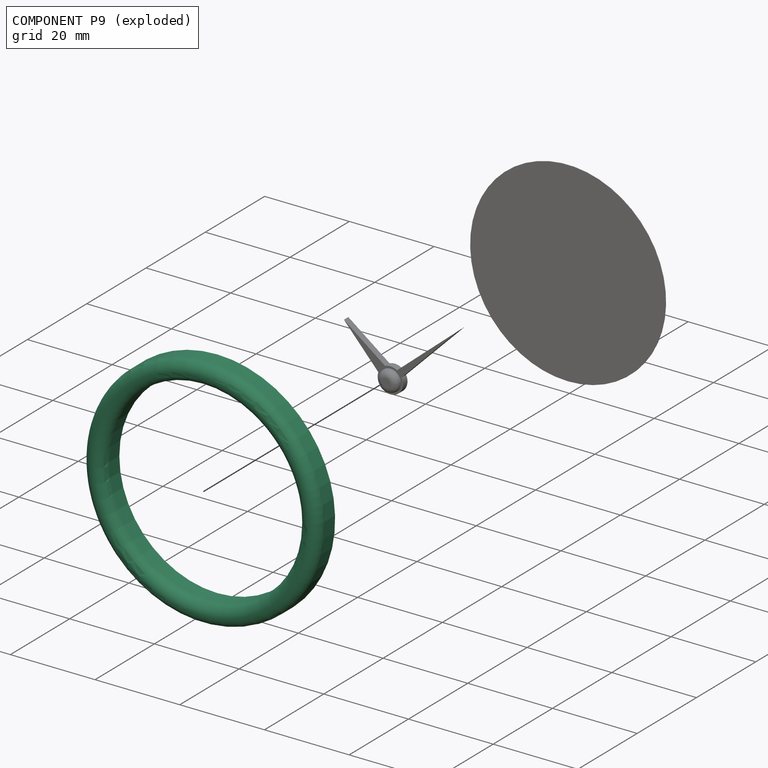
[diagram: component P9 — exploded]
COMPONENT P9 — recipe-attached (CADFS 00925164, mesh-verified: the recipe's output STEP matches this component's geometry to below the mesh-comparison resolution (tessellation chordal tolerance ~0.118 mm)).
Held by: FASTENED mate "Fastened 2" to P15; FASTENED mate "Fastened 2" to P15.
Construction recipe (FeatureScript — the CAD program that rebuilds this solid; sketch coordinates are in the units given by the * unit suffixes, e.g. mm):

FeatureScript 1540;
import(path : "onshape/std/geometry.fs", version : "1540.0");
import(path : "onshape/std/common.fs", version : "1540.0");
const mm = millimeter;
const VERTEX = EntityType.VERTEX;
const EDGE = EntityType.EDGE;
const FACE = EntityType.FACE;
const BODY = EntityType.BODY;
function v(x, y){return vector(x, y);}
function OD(order){return orderDisambiguation(order);}
function OSD(set){return originalSetDisambiguation(set);}
function TD(topology){return topologyDisambiguation(topology);}
function TDD(query){return trueDependencyDisambiguation(query);}
function sQuery(a, b, c) {return sketchEntityQuery(a, b, c);}

annotation { "Feature Type Name" : "Feature", "Feature Type Description" : "" }
export const myFeature = defineFeature(function(context is Context, id is Id, definition is map)
    precondition{}
    {
        {
            var Q0;
            Q0=qCreatedBy(makeId("Right.planeOp"),FACE);
            var sketch = newSketch(context, id + "F0", { "sketchPlane" : qUnion([Q0])});
            skLineSegment(sketch, "E0", {"start": v(0, 23.1) * mm, "end": v(-3.55, 23.1) * mm});
            skLineSegment(sketch, "E1", {"start": v(-5.9, 25.45) * mm, "end": v(-5.9, 25.5) * mm});
            skLineSegment(sketch, "E2", {"start": v(-3.55, 27.85) * mm, "end": v(0, 27.85) * mm});
            skLineSegment(sketch, "E3", {"start": v(0, 27.85) * mm, "end": v(0, 23.1) * mm});
            skLineSegment(sketch, "E4", {"start": v(0, 0) * mm, "end": v(-34.42, 0) * mm, "construction": true});
            skPoint(sketch, "E5.visualSharp", {"position": v(-5.9, 27.85) * mm});
            skArc(sketch, "E5.filletArc", {"start": v(-3.55, 27.85) * mm, "mid": v(-5.21, 27.16) * mm, "end": v(-5.9, 25.5) * mm});
            skPoint(sketch, "E6.visualSharp", {"position": v(-5.9, 23.1) * mm});
            skArc(sketch, "E6.filletArc", {"start": v(-5.9, 25.45) * mm, "mid": v(-5.21, 23.79) * mm, "end": v(-3.55, 23.1) * mm});
            skSolve(sketch);
        }
        {
            var Q0;
            Q0 = qSketchRegion(id + "F0", true);
            var Q1;
            Q1=sQuery(id+"F0.wireOp",EDGE,"E4");
            revolve(context, id + "F1", {"surfaceOperationType" : NewSurfaceOperationType.NEW, "entities" : qUnion([Q0]), "axis" : qUnion([Q1]), "revolveType" : RevolveType.FULL});
        }
    });
PROVENANCE & LICENSES
Assembly (occurrences, transforms, mates, per-part STEP geometry): AutoMate dataset, Zenodo record 7776208, CC0.
Construction recipes: CADFS (HuggingFace VladPyatov/CADFS, CC-BY-4.0, layered over the ABC dataset), FeatureScript reconstruction programs keyed by ABC model id.
Join: ABC meta listings map ABC model id -> Onshape documentId; within a shared document, parts are matched by geometric signature (bounding-box dims + volume at 0.1% relative tolerance, exact B-rep face/solid counts).
Verification: 15 of this assembly's 16 components carry a recipe attachment, and every attachment is mesh-verified: the CADFS STEP and the AutoMate member STEP were compared as meshes in their shared local frame (symmetric sampled-point-to-mesh distance); worst across the 15 attachments: below the mesh-comparison resolution (tessellation chordal tolerance ~0.431 mm) on a 288 mm part.
Renders: orthographic iso camera (az 35 / el 25); the floor grid conveys scale (grid pitch printed in each image; no ruler). In the exploded view each component is displaced by its stored offset vector: the offsets alone carry the explosion direction (mate normal/axis signs are not orientation cues and do not encode it), and separation distances are assigned per mate-chain, not proportionally to assembly-order depth.
